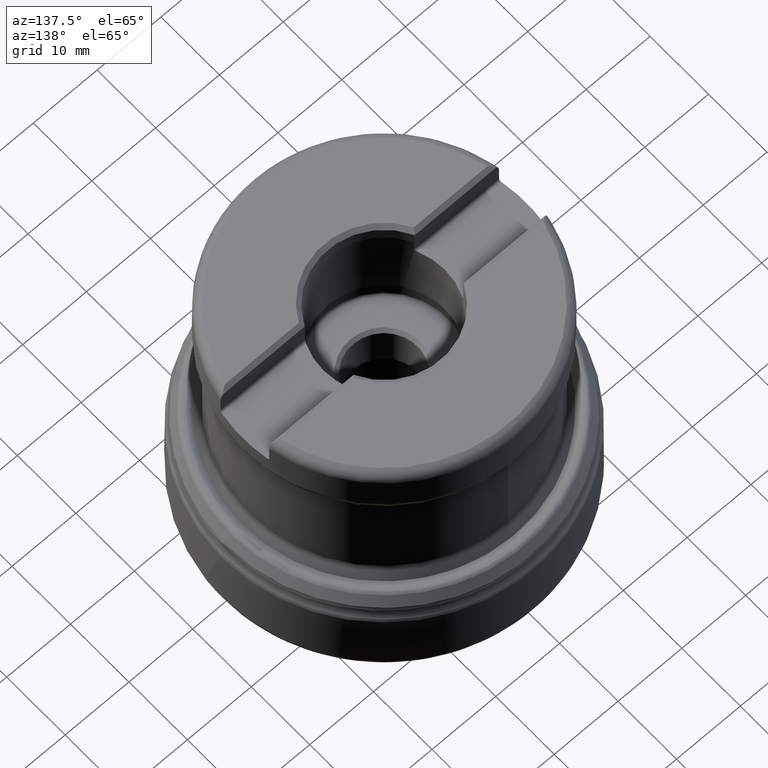
[diagram: clean part render]
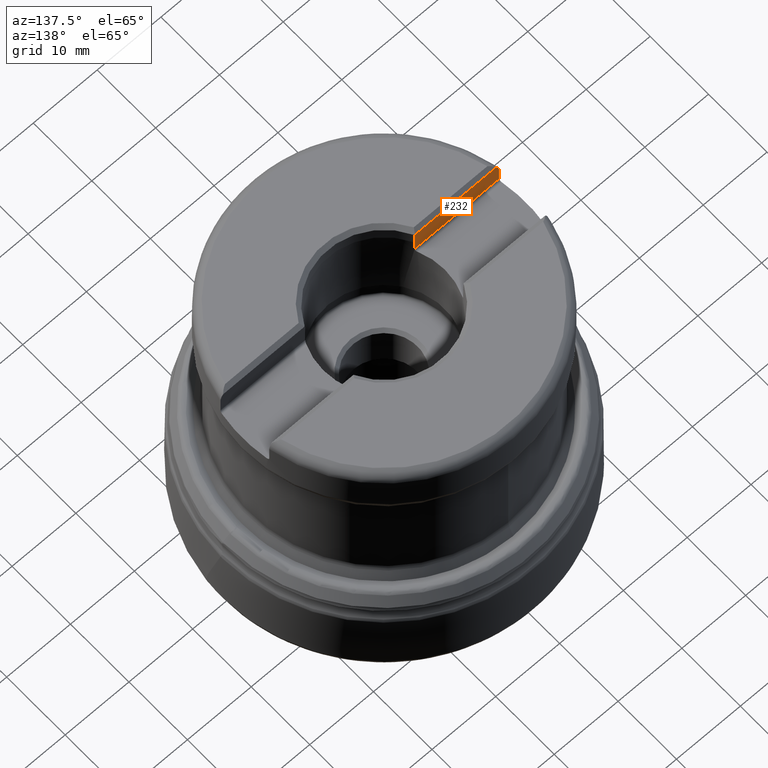
[diagram: same view with one face highlighted and labeled with its STEP entity id]
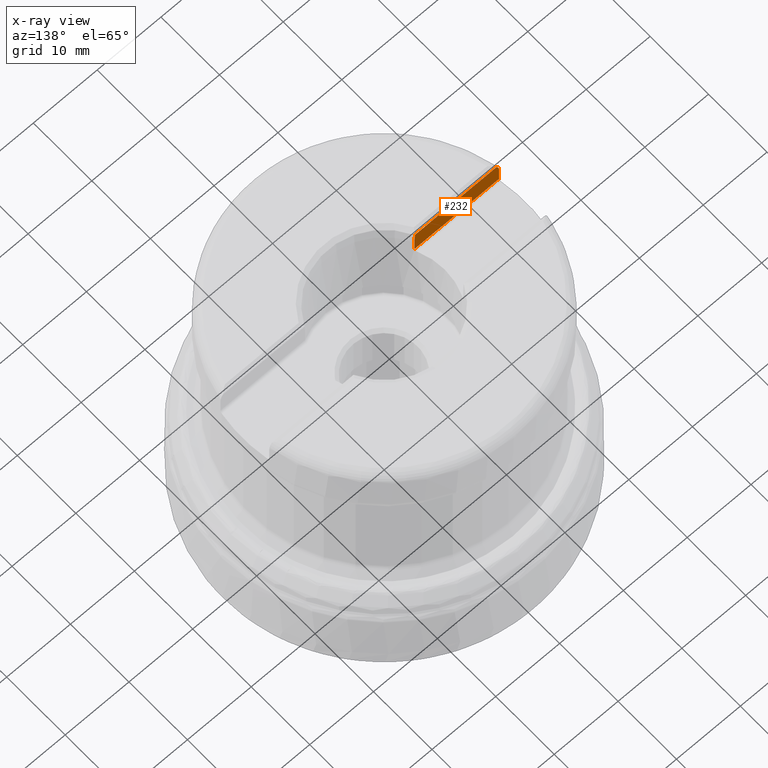
[diagram: x-ray of the same camera — body ghosted, the highlighted face saturated]
A machine part, auxiliary view. The second image highlights one B-rep face of the part: STEP entity #232.
The next image is the same camera in x-ray: the body ghosted, the highlighted face saturated — about 0% of this face is hidden behind the body in this view.
In plain terms, the highlighted planar face has unit normal (0, 1, -0).
Its self-contained STEP definition (entity closure, byte-faithful):
#172=PLANE('',#1163);
#203=FACE_OUTER_BOUND('',#472,.T.);
#232=ADVANCED_FACE('',(#203),#172,.T.);
#303=LINE('',#1821,#330);
#310=LINE('',#2006,#337);
#311=LINE('',#2021,#338);
#312=LINE('',#2023,#339);
#330=VECTOR('',#1247,1.);
#337=VECTOR('',#1314,1.);
#338=VECTOR('',#1315,1.);
#339=VECTOR('',#1316,1.);
#472=EDGE_LOOP('',(#619,#620,#621,#622,#623,#624,#625));
#619=ORIENTED_EDGE('',*,*,#935,.T.);
#620=ORIENTED_EDGE('',*,*,#936,.T.);
#621=ORIENTED_EDGE('',*,*,#937,.T.);
#622=ORIENTED_EDGE('',*,*,#938,.T.);
#623=ORIENTED_EDGE('',*,*,#939,.T.);
#624=ORIENTED_EDGE('',*,*,#898,.F.);
#625=ORIENTED_EDGE('',*,*,#911,.F.);
#806=VERTEX_POINT('',#1820);
#807=VERTEX_POINT('',#1822);
#818=VERTEX_POINT('',#1912);
#839=VERTEX_POINT('',#2007);
#840=VERTEX_POINT('',#2012);
#841=VERTEX_POINT('',#2020);
#842=VERTEX_POINT('',#2022);
#898=EDGE_CURVE('',#806,#807,#303,.T.);
#911=EDGE_CURVE('',#818,#806,#1093,.T.);
#935=EDGE_CURVE('',#818,#839,#310,.T.);
#936=EDGE_CURVE('',#839,#840,#1098,.T.);
#937=EDGE_CURVE('',#840,#841,#1099,.T.);
#938=EDGE_CURVE('',#841,#842,#311,.T.);
#939=EDGE_CURVE('',#842,#807,#312,.T.);
#1093=B_SPLINE_CURVE_WITH_KNOTS('',3,(#1913,#1914,#1915,#1916,#1917,#1918,
#1919,#1920,#1921,#1922),.UNSPECIFIED.,.F.,.F.,(4,3,3,4),(0.,0.244823982914968,
0.761023787079892,1.),.UNSPECIFIED.);
#1098=B_SPLINE_CURVE_WITH_KNOTS('',3,(#2008,#2009,#2010,#2011),
 .UNSPECIFIED.,.F.,.F.,(4,4),(0.,1.),.UNSPECIFIED.);
#1099=B_SPLINE_CURVE_WITH_KNOTS('',3,(#2013,#2014,#2015,#2016,#2017,#2018,
#2019),.UNSPECIFIED.,.F.,.F.,(4,3,4),(0.,0.3112357054131,1.),
 .UNSPECIFIED.);
#1163=AXIS2_PLACEMENT_3D('',#2024,#1317,#1318);
#1247=DIRECTION('',(0.,-1.17145536458252E-15,-1.));
#1314=DIRECTION('',(1.,0.,0.));
#1315=DIRECTION('',(0.,-1.17145536458252E-15,-1.));
#1316=DIRECTION('',(-1.,0.,0.));
#1317=DIRECTION('',(0.,1.,-1.26409695217795E-15));
#1318=DIRECTION('',(0.,1.2637460522491E-15,1.));
#1820=CARTESIAN_POINT('',(-21.8293380568445,-4.17499999999995,42.65));
#1821=CARTESIAN_POINT('',(-21.8293380568445,-4.175,5.27760477534295E-15));
#1822=CARTESIAN_POINT('',(-21.8293380568445,-4.17499999999995,40.1));
#1912=CARTESIAN_POINT('',(-21.4219513583614,-4.17499999999995,43.85));
#1913=CARTESIAN_POINT('',(-21.4219513583614,-4.17499999999995,43.85));
#1914=CARTESIAN_POINT('',(-21.4860362968998,-4.17499999999995,43.766131382288));
#1915=CARTESIAN_POINT('',(-21.5436466593816,-4.17499999999995,43.676895415661));
#1916=CARTESIAN_POINT('',(-21.5936447366564,-4.17499999999995,43.5839383467893));
#1917=CARTESIAN_POINT('',(-21.6981618513458,-4.17499999999995,43.3896187817577));
#1918=CARTESIAN_POINT('',(-21.7708067514396,-4.17499999999995,43.1746782166041));
#1919=CARTESIAN_POINT('',(-21.805246639737,-4.17499999999995,42.9567382828812));
#1920=CARTESIAN_POINT('',(-21.8212551557671,-4.17499999999995,42.8554343851313));
#1921=CARTESIAN_POINT('',(-21.8293380568445,-4.17499999999995,42.7525609686225));
#1922=CARTESIAN_POINT('',(-21.8293380568445,-4.17499999999995,42.65));
#2006=CARTESIAN_POINT('',(-8.65827484392424,-4.17499999999995,43.85));
#2007=CARTESIAN_POINT('',(-8.65827484392424,-4.17499999999995,43.85));
#2008=CARTESIAN_POINT('',(-8.65827484392424,-4.17499999999995,43.85));
#2009=CARTESIAN_POINT('',(-8.65023939768917,-4.17499999999995,43.8427620769147));
#2010=CARTESIAN_POINT('',(-8.64220300614681,-4.17499999999995,43.8355252031571));
#2011=CARTESIAN_POINT('',(-8.63416566260433,-4.17499999999995,43.8282893869926));
#2012=CARTESIAN_POINT('',(-8.63416566260433,-4.17499999999995,43.8282893869926));
#2013=CARTESIAN_POINT('',(-8.63416566260433,-4.17499999999995,43.8282893869926));
#2014=CARTESIAN_POINT('',(-8.62660708625988,-4.17499999999995,43.6334255761293));
#2015=CARTESIAN_POINT('',(-8.61904663182256,-4.17499999999995,43.4385618381062));
#2016=CARTESIAN_POINT('',(-8.6114842844197,-4.17499999999995,43.2436981735551));
#2017=CARTESIAN_POINT('',(-8.5947488175009,-4.17499999999995,42.8124650870485));
#2018=CARTESIAN_POINT('',(-8.57800408030153,-4.17499999999995,42.3812323602033));
#2019=CARTESIAN_POINT('',(-8.5612499087458,-4.17499999999995,41.95));
#2020=CARTESIAN_POINT('',(-8.5612499087458,-4.17499999999995,41.95));
#2021=CARTESIAN_POINT('',(-8.5612499087458,-4.17499999999994,44.65));
#2022=CARTESIAN_POINT('',(-8.5612499087458,-4.17499999999995,40.1));
#2023=CARTESIAN_POINT('',(27.,-4.17499999999995,40.1));
#2024=CARTESIAN_POINT('',(27.,-4.17499999999994,49.0625526127233));